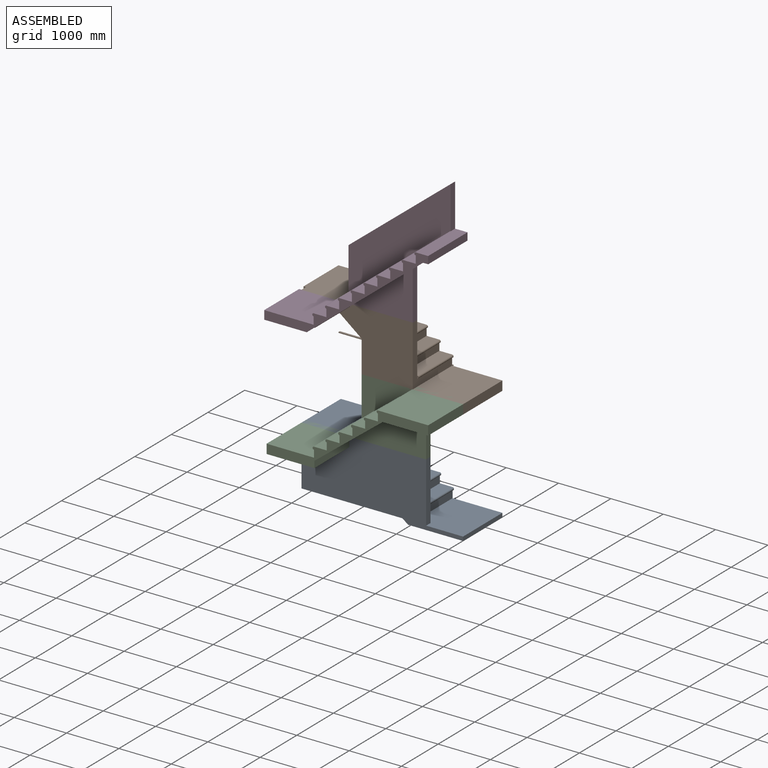
[diagram: assembled view]
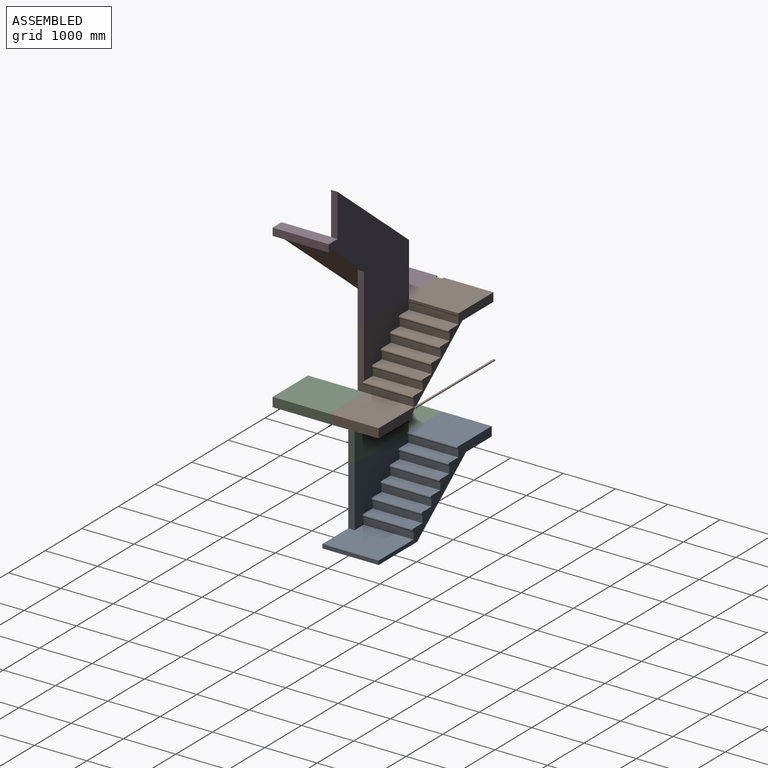
[diagram: assembled view, second angle]
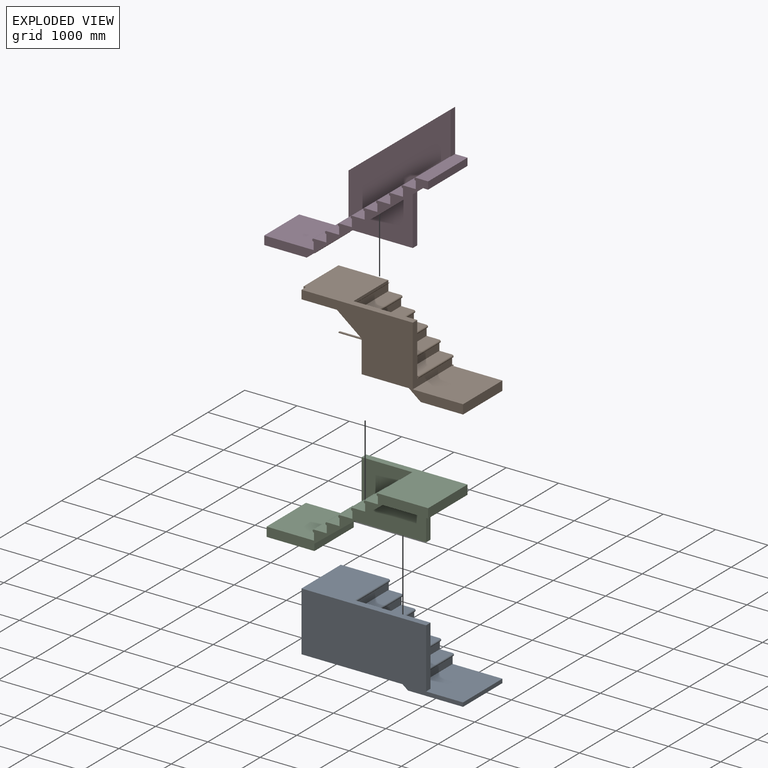
[diagram: exploded view]
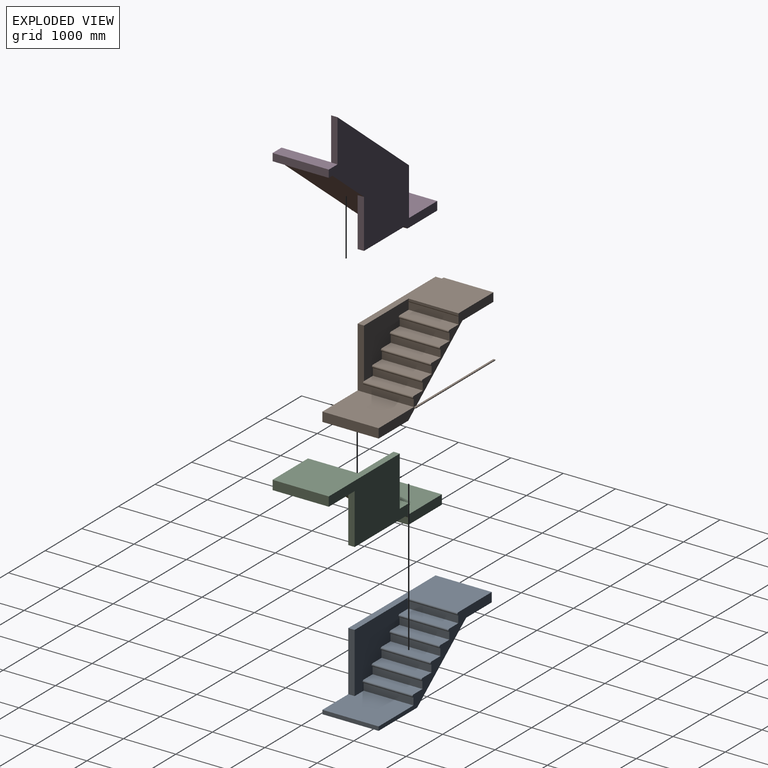
[diagram: exploded view, second angle]
ASSEMBLY  parts=4 mates=3
PART A: 30 faces, bbox 3087.6x1074.4x1219.2 mm
  f0: plane 952.5x138.68mm, normal (1,0,0), area 132096.5mm2, adj f1,f23,f24,f26
  f1: cylinder r=25.91mm len=952.5mm, axis (0,-1,0), area 77526.2mm2, adj f0,f2,f24,f26
  f2: plane 2381.25x1074.42mm, normal (0,0,1), area 1161288mm2, adj f1,f3,f24,f26,f28,f29
  f3: plane 1136.9x1074.42mm, normal (-1,0,0), area 307965.8mm2, adj f2,f4,f24,f25,f27,f29
  f4: plane 952.5x699.74mm, normal (0,0,-1), area 666506.9mm2, adj f3,f5,f24,f25
  f5: plane 1336.46x1074.42mm, normal (-0.61,0,-0.79), area 1630143.5mm2, adj f4,f6,f24,f25,f27,f29
  f6: plane 1074.42x1051.42mm, normal (0,0,-1), area 1129662.3mm2, adj f5,f7,f24,f29
  f7: plane 1074.42x76.2mm, normal (1,0,0), area 81870.8mm2, adj f6,f8,f24,f29
  f8: plane 1074.42x950.85mm, normal (0,0,1), area 991804.8mm2, adj f7,f9,f24,f26,f28,f29
  f9: plane 952.5x138.68mm, normal (1,0,0), area 132096.5mm2, adj f8,f10,f24,f26
  f10: cylinder r=25.91mm len=952.5mm, axis (0,-1,0), area 77526.2mm2, adj f9,f11,f24,f26
  f11: plane 952.5x244.48mm, normal (0,0,1), area 232862.4mm2, adj f10,f12,f24,f26
  f12: plane 952.5x138.68mm, normal (1,0,0), area 132096.5mm2, adj f11,f13,f24,f26
  f13: cylinder r=25.91mm len=952.5mm, axis (0,-1,0), area 77526.2mm2, adj f12,f14,f24,f26
  f14: plane 952.5x244.48mm, normal (0,0,1), area 232862.4mm2, adj f13,f15,f24,f26
  f15: plane 952.5x138.68mm, normal (1,0,0), area 132096.5mm2, adj f14,f16,f24,f26
  f16: cylinder r=25.91mm len=952.5mm, axis (0,-1,0), area 77526.2mm2, adj f15,f17,f24,f26
  f17: plane 952.5x244.48mm, normal (0,0,1), area 232862.4mm2, adj f16,f18,f24,f26
  f18: plane 952.5x138.68mm, normal (1,0,0), area 132096.5mm2, adj f17,f19,f24,f26
  f19: cylinder r=25.91mm len=952.5mm, axis (0,-1,0), area 77526.2mm2, adj f18,f20,f24,f26
  f20: plane 952.5x244.48mm, normal (0,0,1), area 232862.4mm2, adj f19,f21,f24,f26
  f21: plane 952.5x138.68mm, normal (1,0,0), area 132096.5mm2, adj f20,f22,f24,f26
  f22: cylinder r=25.91mm len=952.5mm, axis (0,-1,0), area 77526.2mm2, adj f21,f23,f24,f26
  f23: plane 952.5x244.48mm, normal (0,0,1), area 232862.4mm2, adj f0,f22,f24,f26
  f24: plane 3087.62x1219.2mm, normal (0,1,0), area 560739mm2, adj f0,f1,f2,f3,f4,f5,f6,f7
  f25: plane 1930.6x959.1mm, normal (0,1,0), area 1261384.6mm2, adj f3,f4,f5,f27
  f26: plane 1466.85x1143mm, normal (0,1,0), area 971696.1mm2, adj f0,f1,f2,f8,f9,f10,f11,f12
  f27: plane 1930.6x121.92mm, normal (0,0,-1), area 235378.1mm2, adj f3,f5,f25,f29
  f28: plane 1143x121.92mm, normal (1,0,0), area 139354.6mm2, adj f2,f8,f26,f29
  f29: plane 3087.62x1219.2mm, normal (0,-1,0), area 2793819.7mm2, adj f2,f3,f5,f6,f7,f8,f27,f28
PART B: 43 faces, bbox 3133.3x1112.5x1329.9 mm
  f0: plane 2199.13x1152.14mm, normal (0,1,0), area 353379mm2, adj f3,f4,f5,f6,f7,f8,f9,f10
  f1: plane 165.1x45.72mm, normal (0,-1,0), area 7548.4mm2, adj f22,f23,f24,f32
  f2: plane 1074.42x960.12mm, normal (0,0,1), area 1031572.1mm2, adj f3,f27,f28,f36
  f3: plane 1152.14x1074.42mm, normal (1,0,0), area 274017.5mm2, adj f0,f2,f4,f22,f29,f30,f36
  f4: cylinder r=25.91mm len=952.5mm, axis (0,-1,0), area 77526.2mm2, adj f0,f3,f5,f29
  f5: plane 952.5x243.84mm, normal (0,0,1), area 232257.6mm2, adj f0,f4,f6,f30
  f6: plane 952.5x140.21mm, normal (1,0,0), area 133548.1mm2, adj f0,f5,f7,f30
  f7: cylinder r=25.91mm len=952.5mm, axis (0,-1,0), area 77526.2mm2, adj f0,f6,f8,f30
  f8: plane 952.5x243.84mm, normal (0,0,1), area 232257.6mm2, adj f0,f7,f9,f30
  f9: plane 952.5x140.21mm, normal (1,0,0), area 133548.1mm2, adj f0,f8,f10,f30
  f10: cylinder r=25.91mm len=952.5mm, axis (0,-1,0), area 77526.2mm2, adj f0,f9,f11,f30
  f11: plane 952.5x243.84mm, normal (0,0,1), area 232257.6mm2, adj f0,f10,f12,f30
  f12: plane 952.5x140.21mm, normal (1,0,0), area 133548.1mm2, adj f0,f11,f13,f30
  f13: cylinder r=25.91mm len=952.5mm, axis (0,-1,0), area 77526.2mm2, adj f0,f12,f14,f30
  f14: plane 952.5x243.84mm, normal (0,0,1), area 232257.6mm2, adj f0,f13,f15,f30
  f15: plane 952.5x140.21mm, normal (1,0,0), area 133548.1mm2, adj f0,f14,f16,f30
  f16: cylinder r=25.91mm len=952.5mm, axis (0,-1,0), area 77526.2mm2, adj f0,f15,f17,f30
  f17: plane 952.5x243.84mm, normal (0,0,1), area 232257.6mm2, adj f0,f16,f18,f30
  f18: plane 952.5x140.21mm, normal (1,0,0), area 133548.1mm2, adj f0,f17,f19,f30
  f19: cylinder r=25.91mm len=952.5mm, axis (0,-1,0), area 34031.6mm2, adj f0,f18,f20,f30
  f20: plane 952.5x25.43mm, normal (-0.63,0,0.78), area 31134mm2, adj f0,f19,f21,f30
  f21: plane 952.5x51.38mm, normal (1,0,0), area 48936.7mm2, adj f0,f20,f22,f30
  f22: plane 2173.22x1074.42mm, normal (0,0,1), area 1168093.1mm2, adj f0,f1,f3,f21,f23,f30,f32,f36
  f23: plane 952.5x165.1mm, normal (-1,0,0), area 157257.7mm2, adj f0,f1,f22,f24
  f24: plane 1074.42x845.94mm, normal (0,0,-1), area 888300.8mm2, adj f0,f1,f23,f25,f31,f32,f33,f36
  f25: plane 1479.17x1164.84mm, normal (-0.62,0,-0.79), area 1828369.4mm2, adj f0,f24,f26,f28,f31,f35,f36,f42
  f26: plane 1074.42x808.24mm, normal (0,0,-1), area 868389.7mm2, adj f25,f27,f28,f36
  f27: plane 1074.42x177.8mm, normal (1,0,0), area 191031.9mm2, adj f2,f26,f28,f36
  f28: plane 1014.67x177.8mm, normal (0,1,0), area 162798.1mm2, adj f2,f25,f26,f27,f38,f39
  f29: plane 51.82x25.91mm, normal (0,-1,0), area 1054.4mm2, adj f3,f4
  f30: plane 1219.2x960.12mm, normal (0,1,0), area 697990.6mm2, adj f3,f5,f6,f7,f8,f9,f10,f11
  f31: plane 1376.55x987.04mm, normal (0,1,0), area 361640.6mm2, adj f24,f25,f33,f34,f35
  f32: plane 165.1x121.92mm, normal (-1,0,0), area 20129mm2, adj f1,f22,f24,f36
  f33: plane 472.55x372.13mm, normal (-0.62,0,-0.79), area 73333.5mm2, adj f24,f31,f34,f36
  f34: plane 614.91x121.92mm, normal (-1,0,0), area 74969.8mm2, adj f31,f33,f35,f36
  f35: plane 904x121.92mm, normal (0,0,-1), area 110215.9mm2, adj f25,f31,f34,f36
  f36: plane 3087.62x1329.94mm, normal (0,-1,0), area 1568184.2mm2, adj f2,f3,f22,f24,f25,f26,f27,f32
  f37: plane 2173.22x38.1mm, normal (0,0,1), area 82799.8mm2, adj f0,f38,f40,f41,f42
  f38: plane 38.1x15.24mm, normal (1,0,0), area 580.6mm2, adj f28,f37,f39,f41
  f39: plane 2173.22x38.1mm, normal (0,0,-1), area 82799.8mm2, adj f28,f38,f40,f41,f42
  f40: plane 38.1x15.24mm, normal (-1,0,0), area 580.6mm2, adj f37,f39,f41,f42
  f41: plane 2173.22x15.24mm, normal (0,1,0), area 33119.9mm2, adj f37,f38,f39,f40
  f42: plane 2118.68x15.24mm, normal (0,-1,0), area 32141.2mm2, adj f25,f37,f39,f40
PART C: 34 faces, bbox 3087.6x1074.4x1320.8 mm
  f0: plane 51.82x25.91mm, normal (0,1,0), area 1054.4mm2, adj f18,f19
  f1: plane 1074.42x869.44mm, normal (0,0,-1), area 914260.6mm2, adj f2,f27,f28,f29,f31,f32
  f2: plane 1074.42x177.8mm, normal (1,0,0), area 191031.9mm2, adj f1,f3,f28,f32
  f3: plane 1938.02x1074.42mm, normal (0,0,1), area 1150797.7mm2, adj f2,f4,f19,f28,f32,f33
  f4: cylinder r=25.91mm len=952.5mm, axis (0,1,0), area 56006.8mm2, adj f3,f5,f28,f33
  f5: plane 952.5x8.29mm, normal (-0.62,0,-0.79), area 10045mm2, adj f4,f6,f28,f33
  f6: cylinder r=25.91mm len=952.5mm, axis (0,1,0), area 11403.8mm2, adj f5,f7,f28,f33
  f7: plane 952.5x138.68mm, normal (-1,0,0), area 132096.5mm2, adj f6,f8,f28,f33
  f8: plane 952.5x244.48mm, normal (0,0,1), area 232862.4mm2, adj f7,f9,f28,f33
  f9: cylinder r=25.91mm len=952.5mm, axis (0,1,0), area 77526.2mm2, adj f8,f10,f28,f33
  f10: plane 952.5x138.68mm, normal (-1,0,0), area 132096.5mm2, adj f9,f11,f28,f33
  f11: plane 952.5x244.48mm, normal (0,0,1), area 232862.4mm2, adj f10,f12,f28,f33
  f12: cylinder r=25.91mm len=952.5mm, axis (0,1,0), area 77526.2mm2, adj f11,f13,f28,f33
  f13: plane 952.5x138.68mm, normal (-1,0,0), area 132096.5mm2, adj f12,f14,f28,f33
  f14: plane 952.5x244.48mm, normal (0,0,1), area 232862.4mm2, adj f13,f15,f28,f33
  f15: cylinder r=25.91mm len=952.5mm, axis (0,1,0), area 77526.2mm2, adj f14,f16,f28,f33
  f16: plane 952.5x138.68mm, normal (-1,0,0), area 132096.5mm2, adj f15,f17,f28,f33
  f17: plane 952.5x244.48mm, normal (0,0,1), area 232862.4mm2, adj f16,f18,f28,f33
  f18: cylinder r=25.91mm len=952.5mm, axis (0,1,0), area 77526.2mm2, adj f0,f17,f19,f28
  f19: plane 1074.42x952.5mm, normal (-1,0,0), area 248225.3mm2, adj f0,f3,f18,f20,f28,f32,f33
  f20: plane 1074.42x244.48mm, normal (0,0,1), area 262668.8mm2, adj f19,f21,f28,f32
  f21: cylinder r=25.91mm len=1074.42mm, axis (0,1,0), area 87449.6mm2, adj f20,f22,f28,f32
  f22: plane 1074.42x138.68mm, normal (-1,0,0), area 149004.9mm2, adj f21,f23,f28,f32
  f23: plane 1074.42x905.13mm, normal (0,0,1), area 972488.7mm2, adj f22,f24,f28,f32
  f24: plane 1074.42x177.8mm, normal (-1,0,0), area 191031.9mm2, adj f23,f25,f28,f32
  f25: plane 1074.42x914.4mm, normal (0,0,-1), area 982449.6mm2, adj f24,f26,f28,f32
  f26: plane 1074.42x127.06mm, normal (1,0,0), area 136518.7mm2, adj f25,f27,f28,f32
  f27: plane 1303.79x1074.42mm, normal (0.61,0,-0.79), area 1584425mm2, adj f1,f26,f28,f29,f30,f32
  f28: plane 3087.62x1320.8mm, normal (0,-1,0), area 529593.8mm2, adj f1,f2,f3,f4,f5,f6,f7,f8
  f29: plane 1401.74x965.2mm, normal (0,-1,0), area 755172.9mm2, adj f1,f27,f30,f31
  f30: plane 1401.74x121.92mm, normal (0,0,-1), area 170899.8mm2, adj f27,f29,f31,f32
  f31: plane 965.2x121.92mm, normal (1,0,0), area 117677.2mm2, adj f1,f29,f30,f32
  f32: plane 3087.62x1320.8mm, normal (0,1,0), area 1745223.7mm2, adj f1,f2,f3,f19,f20,f21,f22,f23
  f33: plane 977.9x762mm, normal (0,-1,0), area 461511.3mm2, adj f3,f4,f5,f6,f7,f8,f9,f10
PART D: 45 faces, bbox 3133.3x1074.4x2751.4 mm
  f0: plane 51.82x25.91mm, normal (0,1,0), area 1054.4mm2, adj f33,f34
  f1: plane 952.5x165.1mm, normal (-1,0,0), area 157257.7mm2, adj f2,f35,f36,f37
  f2: plane 952.5x813.15mm, normal (0,0,-1), area 774529.5mm2, adj f1,f3,f36,f37
  f3: plane 952.5x140.33mm, normal (0.63,0,-0.78), area 171787.9mm2, adj f2,f4,f36,f37
  f4: cylinder r=25.91mm len=952.5mm, axis (0,1,0), area 34542.9mm2, adj f3,f5,f36,f37
  f5: plane 2056.26x1660mm, normal (0.63,0,-0.78), area 2652306mm2, adj f4,f6,f36,f37,f42,f43,f44
  f6: plane 1074.42x97.63mm, normal (0,0,-1), area 104892.8mm2, adj f5,f7,f36,f43
  f7: plane 1074.42x142.49mm, normal (1,0,0), area 153098.4mm2, adj f6,f8,f36,f43
  f8: plane 1074.42x237.74mm, normal (0,0,1), area 255436.9mm2, adj f7,f9,f36,f39,f43
  f9: cylinder r=25.91mm len=952.5mm, axis (0,1,0), area 77526.2mm2, adj f8,f10,f36,f38
  f10: plane 952.5x145.03mm, normal (-1,0,0), area 138144.9mm2, adj f9,f11,f36,f38
  f11: plane 952.5x243.84mm, normal (0,0,1), area 232257.6mm2, adj f10,f12,f36,f38
  f12: cylinder r=25.91mm len=952.5mm, axis (0,1,0), area 77526.2mm2, adj f11,f13,f36,f38
  f13: plane 952.5x145.03mm, normal (-1,0,0), area 138144.9mm2, adj f12,f14,f36,f38
  f14: plane 952.5x243.84mm, normal (0,0,1), area 232257.6mm2, adj f13,f15,f36,f38
  f15: cylinder r=25.91mm len=952.5mm, axis (0,1,0), area 77526.2mm2, adj f14,f16,f36,f38
  f16: plane 952.5x145.03mm, normal (-1,0,0), area 138144.9mm2, adj f15,f17,f36,f38
  f17: plane 952.5x243.84mm, normal (0,0,1), area 232257.6mm2, adj f16,f18,f36,f38
  f18: cylinder r=25.91mm len=952.5mm, axis (0,1,0), area 77526.2mm2, adj f17,f19,f36,f38
  f19: plane 952.5x145.03mm, normal (-1,0,0), area 138144.9mm2, adj f18,f20,f36,f38
  f20: plane 952.5x243.84mm, normal (0,0,1), area 232257.6mm2, adj f19,f21,f36,f38
  f21: cylinder r=25.91mm len=952.5mm, axis (0,1,0), area 77526.2mm2, adj f20,f22,f36,f38
  f22: plane 952.5x145.03mm, normal (-1,0,0), area 138144.9mm2, adj f21,f23,f36,f38
  f23: plane 952.5x243.84mm, normal (0,0,1), area 232257.6mm2, adj f22,f24,f36,f38
  f24: cylinder r=25.91mm len=952.5mm, axis (0,1,0), area 77526.2mm2, adj f23,f25,f36,f38
  f25: plane 952.5x145.03mm, normal (-1,0,0), area 138144.9mm2, adj f24,f26,f36,f38
  f26: plane 952.5x243.84mm, normal (0,0,1), area 232257.6mm2, adj f25,f27,f36,f38
  f27: cylinder r=25.91mm len=952.5mm, axis (0,1,0), area 77526.2mm2, adj f26,f28,f36,f38
  f28: plane 952.5x145.03mm, normal (-1,0,0), area 138144.9mm2, adj f27,f29,f36,f38
  f29: plane 952.5x243.84mm, normal (0,0,1), area 232257.6mm2, adj f28,f30,f36,f38
  f30: cylinder r=25.91mm len=952.5mm, axis (0,1,0), area 77526.2mm2, adj f29,f31,f36,f38
  f31: plane 952.5x145.03mm, normal (-1,0,0), area 138144.9mm2, adj f30,f32,f36,f38
  f32: plane 952.5x243.84mm, normal (0,0,1), area 232257.6mm2, adj f31,f33,f36,f38
  f33: cylinder r=25.91mm len=952.5mm, axis (0,1,0), area 77526.2mm2, adj f0,f32,f34,f36
  f34: plane 1074.42x1011.48mm, normal (-1,0,0), area 261465mm2, adj f0,f33,f35,f36,f38,f40,f41,f43
  f35: plane 952.5x944.88mm, normal (0,0,1), area 899998.2mm2, adj f1,f34,f36,f37
  f36: plane 3133.34x1936.75mm, normal (0,-1,0), area 507047.8mm2, adj f1,f2,f3,f4,f5,f6,f7,f8
  f37: plane 1017.67x165.1mm, normal (0,1,0), area 151273.2mm2, adj f1,f2,f3,f4,f5,f35,f41
  f38: plane 2389.43x1950.72mm, normal (0,-1,0), area 1772687.9mm2, adj f9,f10,f11,f12,f13,f14,f15,f16
  f39: plane 814.63x121.92mm, normal (1,0,0), area 99320.2mm2, adj f8,f38,f40,f43
  f40: plane 1950.72x1574.8mm, normal (-0.63,0,0.78), area 305659.6mm2, adj f34,f38,f39,f43
  f41: plane 1228.34x121.92mm, normal (0,0,-1), area 149759.7mm2, adj f34,f37,f42,f43,f44
  f42: plane 932.87x121.92mm, normal (1,0,0), area 113735.9mm2, adj f5,f41,f43,f44
  f43: plane 2586.28x2188.46mm, normal (0,1,0), area 2666402.8mm2, adj f5,f6,f7,f8,f34,f39,f40,f41
  f44: plane 1155.56x932.87mm, normal (0,-1,0), area 538994.7mm2, adj f5,f41,f42
PLACE A t=(-3426.19,-713.38,647.75)mm
PLACE B t=(-3426.19,-713.38,647.75)mm
PLACE C t=(-3426.19,-835.3,647.75)mm
PLACE D t=(-3426.19,-835.3,647.75)mm
MATE fastened C.f30 <-> A.f2  axis (0,0,-1) through (-1044.94,-774.34,1784.65)mm
MATE fastened B.f35 <-> C.f3  axis (0,0,-1) through (-2276.59,-774.34,2927.65)mm
MATE fastened B.f22 <-> D.f41  axis (0,0,1) through (-1298.69,-774.34,4079.8)mm
